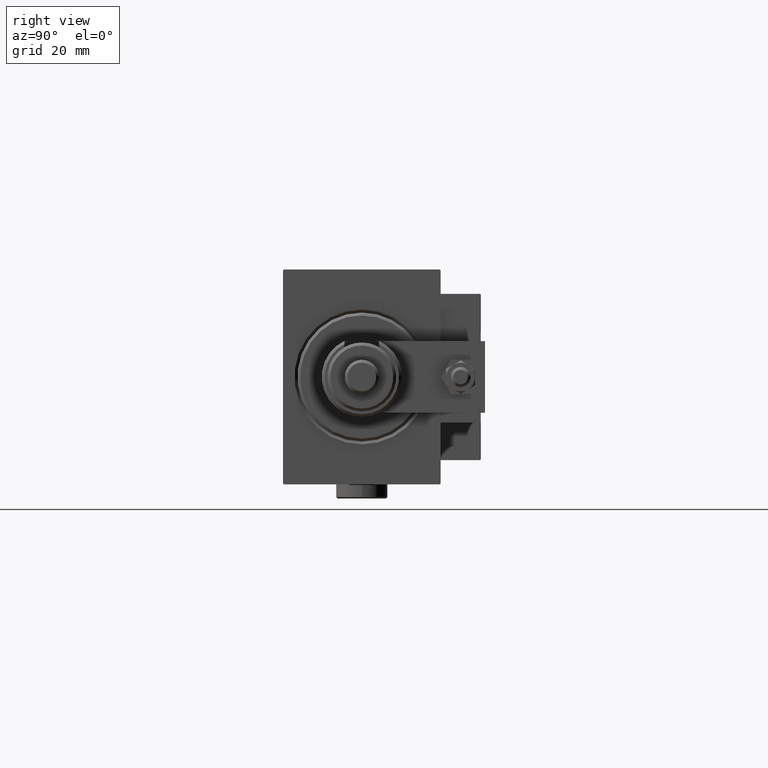
[diagram: clean part render]
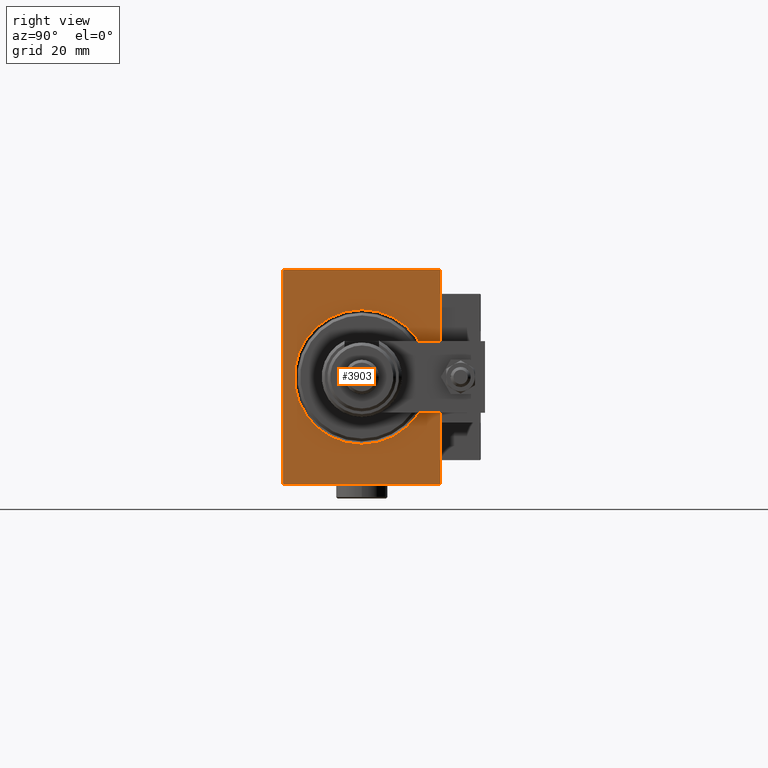
[diagram: same view with one face highlighted and labeled with its STEP entity id]
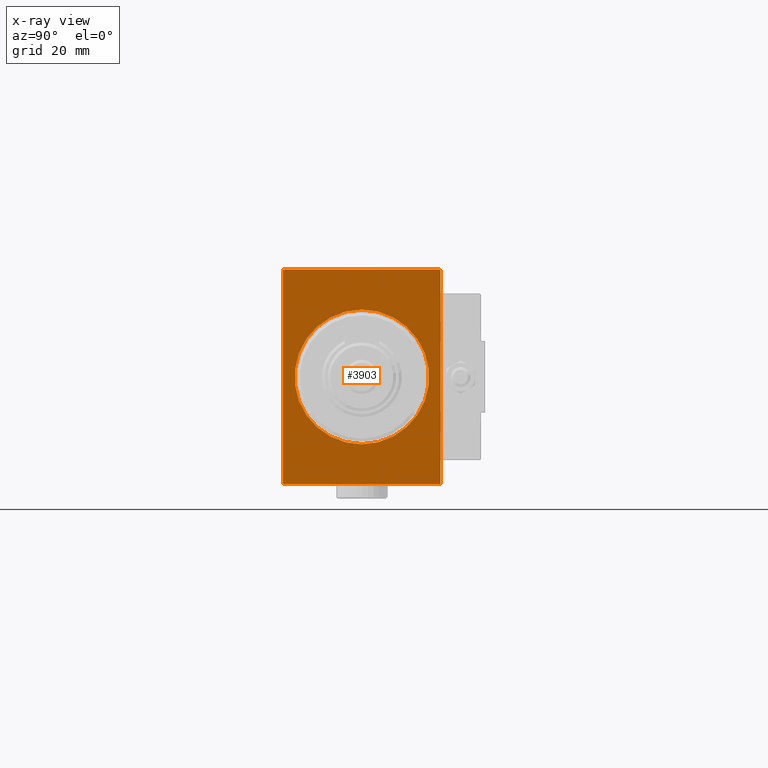
[diagram: x-ray of the same camera — body ghosted, the highlighted face saturated]
A machine part, right view. The second image highlights one B-rep face of the part: STEP entity #3903.
The next image is the same camera in x-ray: the body ghosted, the highlighted face saturated — about 0% of this face is hidden behind the body in this view.
In plain terms, the highlighted planar face has unit normal (-1, 0, 0).
Its self-contained STEP definition (entity closure, byte-faithful):
#157 = VECTOR ( 'NONE', #6103, 1000.000000000000114 ) ;
#954 = ORIENTED_EDGE ( 'NONE', *, *, #43385, .T. ) ;
#1356 = AXIS2_PLACEMENT_3D ( 'NONE', #31506, #48189, #30421 ) ;
#1409 = CARTESIAN_POINT ( 'NONE',  ( 0.000000000000000000, 27.49999999999999645, 37.50000000000000711 ) ) ;
#1814 = DIRECTION ( 'NONE',  ( 0.000000000000000000, 0.000000000000000000, -1.000000000000000000 ) ) ;
#2378 = VERTEX_POINT ( 'NONE', #34889 ) ;
#3903 = ADVANCED_FACE ( 'NONE', ( #39672, #44317 ), #43518, .F. ) ;
#4152 = EDGE_CURVE ( 'NONE', #48702, #18122, #38064, .T. ) ;
#5930 = AXIS2_PLACEMENT_3D ( 'NONE', #53174, #32405, #49078 ) ;
#6103 = DIRECTION ( 'NONE',  ( -0.000000000000000000, 0.7071067811865638930, -0.7071067811865312525 ) ) ;
#6153 = VERTEX_POINT ( 'NONE', #7763 ) ;
#6796 = VECTOR ( 'NONE', #22556, 1000.000000000000114 ) ;
#7763 = CARTESIAN_POINT ( 'NONE',  ( 0.000000000000000000, 27.50000000000000355, -37.20000000000002416 ) ) ;
#8044 = ORIENTED_EDGE ( 'NONE', *, *, #12364, .F. ) ;
#10359 = EDGE_CURVE ( 'NONE', #46554, #11578, #36191, .T. ) ;
#11105 = VERTEX_POINT ( 'NONE', #53372 ) ;
#11119 = ORIENTED_EDGE ( 'NONE', *, *, #20270, .F. ) ;
#11152 = VECTOR ( 'NONE', #51454, 1000.000000000000000 ) ;
#11578 = VERTEX_POINT ( 'NONE', #33920 ) ;
#12294 = EDGE_LOOP ( 'NONE', ( #38112, #954, #11119, #33108, #8044, #41987, #42317, #48052 ) ) ;
#12364 = EDGE_CURVE ( 'NONE', #51306, #34060, #38306, .T. ) ;
#14111 = LINE ( 'NONE', #30794, #47785 ) ;
#15391 = CARTESIAN_POINT ( 'NONE',  ( 0.000000000000000000, -27.50000000000000000, 37.19999999999999574 ) ) ;
#15436 = VECTOR ( 'NONE', #29533, 1000.000000000000000 ) ;
#17500 = CARTESIAN_POINT ( 'NONE',  ( 0.000000000000000000, -27.50000000000000000, -37.50000000000000711 ) ) ;
#17947 = AXIS2_PLACEMENT_3D ( 'NONE', #51975, #47891, #35594 ) ;
#18122 = VERTEX_POINT ( 'NONE', #42956 ) ;
#18425 = CARTESIAN_POINT ( 'NONE',  ( 0.000000000000000000, -27.50000000000000000, 37.19999999999999574 ) ) ;
#20270 = EDGE_CURVE ( 'NONE', #6153, #11105, #31634, .T. ) ;
#22556 = DIRECTION ( 'NONE',  ( -0.000000000000000000, -0.7071067811865474617, 0.7071067811865474617 ) ) ;
#25780 = VERTEX_POINT ( 'NONE', #34312 ) ;
#26154 = DIRECTION ( 'NONE',  ( 0.000000000000000000, -0.7071067811865434649, -0.7071067811865516806 ) ) ;
#26567 = VECTOR ( 'NONE', #41170, 1000.000000000000000 ) ;
#28229 = VECTOR ( 'NONE', #28485, 999.9999999999998863 ) ;
#28485 = DIRECTION ( 'NONE',  ( -0.000000000000000000, 0.7071067811865515695, 0.7071067811865435759 ) ) ;
#29343 = EDGE_CURVE ( 'NONE', #6153, #34060, #14111, .T. ) ;
#29533 = DIRECTION ( 'NONE',  ( 0.000000000000000000, 1.000000000000000000, 0.000000000000000000 ) ) ;
#30197 = EDGE_CURVE ( 'NONE', #46554, #25780, #31362, .T. ) ;
#30421 = DIRECTION ( 'NONE',  ( 0.000000000000000000, 0.000000000000000000, -1.000000000000000000 ) ) ;
#30422 = EDGE_CURVE ( 'NONE', #51306, #25780, #34587, .T. ) ;
#30794 = CARTESIAN_POINT ( 'NONE',  ( 0.000000000000000000, 27.50000000000000355, -37.20000000000002416 ) ) ;
#30942 = CARTESIAN_POINT ( 'NONE',  ( 0.000000000000000000, 27.20000000000002771, -37.50000000000000711 ) ) ;
#31193 = CARTESIAN_POINT ( 'NONE',  ( 0.000000000000000000, -27.20000000000002061, -37.50000000000000711 ) ) ;
#31279 = EDGE_CURVE ( 'NONE', #18122, #48702, #36504, .T. ) ;
#31362 = LINE ( 'NONE', #39293, #35628 ) ;
#31506 = CARTESIAN_POINT ( 'NONE',  ( 0.000000000000000000, 0.000000000000000000, 0.000000000000000000 ) ) ;
#31634 = LINE ( 'NONE', #37895, #26567 ) ;
#32050 = EDGE_LOOP ( 'NONE', ( #43381, #46530 ) ) ;
#32405 = DIRECTION ( 'NONE',  ( 1.000000000000000000, 0.000000000000000000, 0.000000000000000000 ) ) ;
#33108 = ORIENTED_EDGE ( 'NONE', *, *, #29343, .T. ) ;
#33920 = CARTESIAN_POINT ( 'NONE',  ( 0.000000000000000000, -27.20000000000000284, 37.49999999999999289 ) ) ;
#34060 = VERTEX_POINT ( 'NONE', #30942 ) ;
#34066 = EDGE_CURVE ( 'NONE', #2378, #11578, #38616, .T. ) ;
#34312 = CARTESIAN_POINT ( 'NONE',  ( 0.000000000000000000, -27.50000000000000000, -37.20000000000002416 ) ) ;
#34587 = LINE ( 'NONE', #42511, #6796 ) ;
#34889 = CARTESIAN_POINT ( 'NONE',  ( 0.000000000000000000, 27.20000000000003126, 37.50000000000000711 ) ) ;
#35594 = DIRECTION ( 'NONE',  ( 0.000000000000000000, 0.000000000000000000, -1.000000000000000000 ) ) ;
#35628 = VECTOR ( 'NONE', #1814, 1000.000000000000000 ) ;
#36191 = LINE ( 'NONE', #15391, #28229 ) ;
#36504 = CIRCLE ( 'NONE', #5930, 23.50000000000000355 ) ;
#37895 = CARTESIAN_POINT ( 'NONE',  ( 0.000000000000000000, 27.50000000000000355, -37.50000000000000711 ) ) ;
#38064 = CIRCLE ( 'NONE', #1356, 23.50000000000000355 ) ;
#38112 = ORIENTED_EDGE ( 'NONE', *, *, #34066, .F. ) ;
#38306 = LINE ( 'NONE', #17500, #15436 ) ;
#38616 = LINE ( 'NONE', #1409, #11152 ) ;
#39293 = CARTESIAN_POINT ( 'NONE',  ( 0.000000000000000000, -27.50000000000000000, 37.49999999999999289 ) ) ;
#39465 = CARTESIAN_POINT ( 'NONE',  ( 0.000000000000000000, 27.20000000000003126, 37.50000000000000711 ) ) ;
#39672 = FACE_BOUND ( 'NONE', #32050, .T. ) ;
#41170 = DIRECTION ( 'NONE',  ( 0.000000000000000000, -9.251858538542970348E-17, 1.000000000000000000 ) ) ;
#41987 = ORIENTED_EDGE ( 'NONE', *, *, #30422, .T. ) ;
#42317 = ORIENTED_EDGE ( 'NONE', *, *, #30197, .F. ) ;
#42511 = CARTESIAN_POINT ( 'NONE',  ( 0.000000000000000000, -27.20000000000002061, -37.50000000000000711 ) ) ;
#42956 = CARTESIAN_POINT ( 'NONE',  ( 0.000000000000000000, 2.877919977996280715E-15, -23.50000000000000355 ) ) ;
#43381 = ORIENTED_EDGE ( 'NONE', *, *, #4152, .T. ) ;
#43385 = EDGE_CURVE ( 'NONE', #2378, #11105, #51487, .T. ) ;
#43518 = PLANE ( 'NONE',  #17947 ) ;
#44317 = FACE_OUTER_BOUND ( 'NONE', #12294, .T. ) ;
#46530 = ORIENTED_EDGE ( 'NONE', *, *, #31279, .T. ) ;
#46554 = VERTEX_POINT ( 'NONE', #18425 ) ;
#46677 = CARTESIAN_POINT ( 'NONE',  ( 0.000000000000000000, 0.000000000000000000, 23.50000000000000355 ) ) ;
#47785 = VECTOR ( 'NONE', #26154, 1000.000000000000000 ) ;
#47891 = DIRECTION ( 'NONE',  ( 1.000000000000000000, 0.000000000000000000, 0.000000000000000000 ) ) ;
#48052 = ORIENTED_EDGE ( 'NONE', *, *, #10359, .T. ) ;
#48189 = DIRECTION ( 'NONE',  ( 1.000000000000000000, 0.000000000000000000, 0.000000000000000000 ) ) ;
#48702 = VERTEX_POINT ( 'NONE', #46677 ) ;
#49078 = DIRECTION ( 'NONE',  ( 0.000000000000000000, 0.000000000000000000, -1.000000000000000000 ) ) ;
#51306 = VERTEX_POINT ( 'NONE', #31193 ) ;
#51454 = DIRECTION ( 'NONE',  ( 0.000000000000000000, -1.000000000000000000, -2.523234146875355998E-16 ) ) ;
#51487 = LINE ( 'NONE', #39465, #157 ) ;
#51975 = CARTESIAN_POINT ( 'NONE',  ( 0.000000000000000000, 0.000000000000000000, 0.000000000000000000 ) ) ;
#53174 = CARTESIAN_POINT ( 'NONE',  ( 0.000000000000000000, 0.000000000000000000, 0.000000000000000000 ) ) ;
#53372 = CARTESIAN_POINT ( 'NONE',  ( 0.000000000000000000, 27.49999999999999645, 37.20000000000005258 ) ) ;